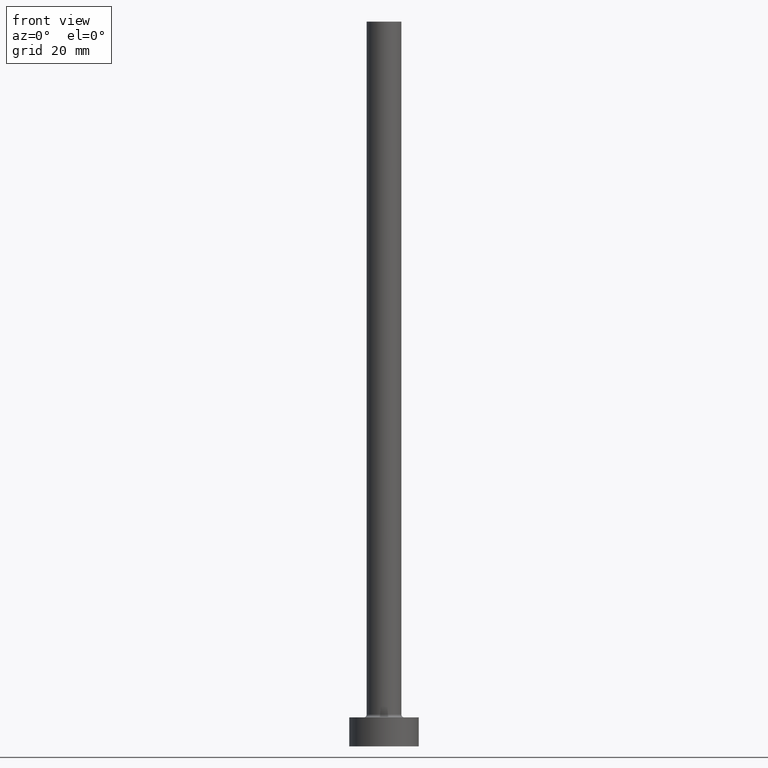
[diagram: clean part render]
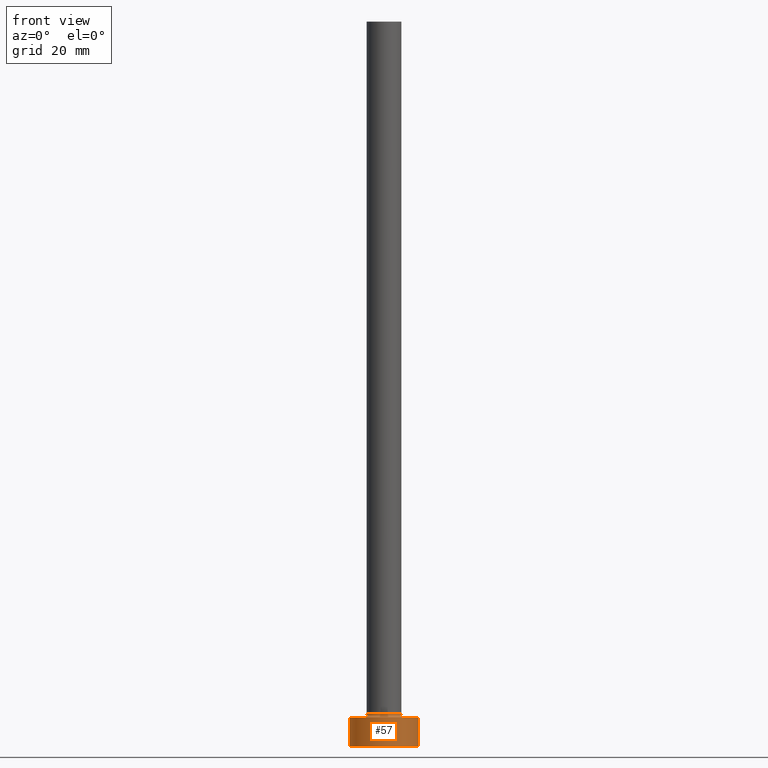
[diagram: same view with one face highlighted and labeled with its STEP entity id]
A machine part, front view. The second image highlights one B-rep face of the part: STEP entity #57.
In plain terms, the highlighted cylindrical surface (edge-blend (fillet) strip) has radius 6 mm, axis along (-0, -0, -1).
Its self-contained STEP definition (entity closure, byte-faithful):
#1 = EDGE_CURVE ( 'NONE', #342, #305, #122, .T. ) ;
#11 = DIRECTION ( 'NONE',  ( 0.000000000000000000, 0.000000000000000000, 1.000000000000000000 ) ) ;
#13 = VECTOR ( 'NONE', #126, 1000.000000000000000 ) ;
#14 = DIRECTION ( 'NONE',  ( -0.000000000000000000, -0.000000000000000000, -1.000000000000000000 ) ) ;
#15 = CYLINDRICAL_SURFACE ( 'NONE', #415, 6.000000000000000888 ) ;
#57 = ADVANCED_FACE ( 'NONE', ( #409 ), #15, .T. ) ;
#65 = ORIENTED_EDGE ( 'NONE', *, *, #1, .T. ) ;
#86 = CARTESIAN_POINT ( 'NONE',  ( 0.000000000000000000, 0.000000000000000000, 5.000000000000000000 ) ) ;
#91 = CARTESIAN_POINT ( 'NONE',  ( 6.000000000000000888, 7.347880794884120722E-16, 5.000000000000000000 ) ) ;
#101 = CARTESIAN_POINT ( 'NONE',  ( -6.000000000000000888, 0.000000000000000000, 5.000000000000000000 ) ) ;
#102 = CIRCLE ( 'NONE', #291, 6.000000000000000888 ) ;
#113 = DIRECTION ( 'NONE',  ( 0.000000000000000000, 0.000000000000000000, 1.000000000000000000 ) ) ;
#115 = EDGE_CURVE ( 'NONE', #294, #348, #102, .T. ) ;
#122 = CIRCLE ( 'NONE', #238, 6.000000000000000888 ) ;
#123 = CARTESIAN_POINT ( 'NONE',  ( 0.000000000000000000, 0.000000000000000000, 5.000000000000000000 ) ) ;
#126 = DIRECTION ( 'NONE',  ( -0.000000000000000000, -0.000000000000000000, -1.000000000000000000 ) ) ;
#130 = CARTESIAN_POINT ( 'NONE',  ( -6.000000000000000888, 0.000000000000000000, 5.000000000000000000 ) ) ;
#136 = DIRECTION ( 'NONE',  ( -1.000000000000000000, 0.000000000000000000, 0.000000000000000000 ) ) ;
#141 = ORIENTED_EDGE ( 'NONE', *, *, #115, .F. ) ;
#153 = ORIENTED_EDGE ( 'NONE', *, *, #332, .T. ) ;
#174 = LINE ( 'NONE', #101, #13 ) ;
#193 = DIRECTION ( 'NONE',  ( -0.000000000000000000, -0.000000000000000000, -1.000000000000000000 ) ) ;
#238 = AXIS2_PLACEMENT_3D ( 'NONE', #365, #113, #400 ) ;
#247 = CARTESIAN_POINT ( 'NONE',  ( -6.000000000000000888, 0.000000000000000000, 0.000000000000000000 ) ) ;
#262 = EDGE_LOOP ( 'NONE', ( #350, #141, #153, #65 ) ) ;
#282 = CARTESIAN_POINT ( 'NONE',  ( 6.000000000000000888, 7.347880794884120722E-16, 0.000000000000000000 ) ) ;
#291 = AXIS2_PLACEMENT_3D ( 'NONE', #123, #11, #307 ) ;
#294 = VERTEX_POINT ( 'NONE', #130 ) ;
#305 = VERTEX_POINT ( 'NONE', #282 ) ;
#307 = DIRECTION ( 'NONE',  ( 1.000000000000000000, 0.000000000000000000, 0.000000000000000000 ) ) ;
#316 = EDGE_CURVE ( 'NONE', #348, #305, #410, .T. ) ;
#332 = EDGE_CURVE ( 'NONE', #294, #342, #174, .T. ) ;
#342 = VERTEX_POINT ( 'NONE', #247 ) ;
#348 = VERTEX_POINT ( 'NONE', #437 ) ;
#350 = ORIENTED_EDGE ( 'NONE', *, *, #316, .F. ) ;
#365 = CARTESIAN_POINT ( 'NONE',  ( 0.000000000000000000, 0.000000000000000000, 0.000000000000000000 ) ) ;
#400 = DIRECTION ( 'NONE',  ( 1.000000000000000000, 0.000000000000000000, 0.000000000000000000 ) ) ;
#409 = FACE_OUTER_BOUND ( 'NONE', #262, .T. ) ;
#410 = LINE ( 'NONE', #91, #413 ) ;
#413 = VECTOR ( 'NONE', #193, 1000.000000000000000 ) ;
#415 = AXIS2_PLACEMENT_3D ( 'NONE', #86, #14, #136 ) ;
#437 = CARTESIAN_POINT ( 'NONE',  ( 6.000000000000000888, 7.347880794884120722E-16, 5.000000000000000000 ) ) ;